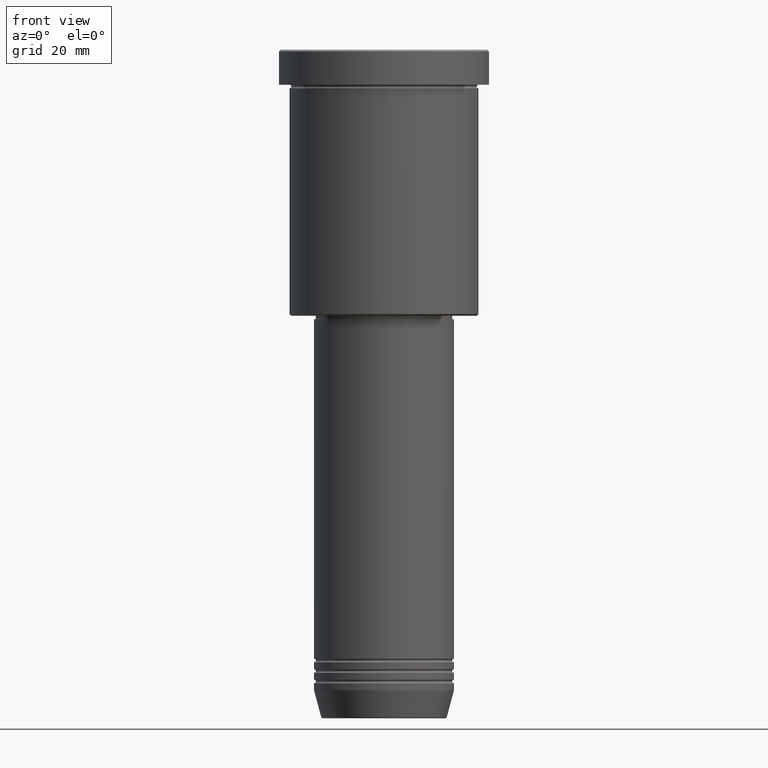
[diagram: clean part render]
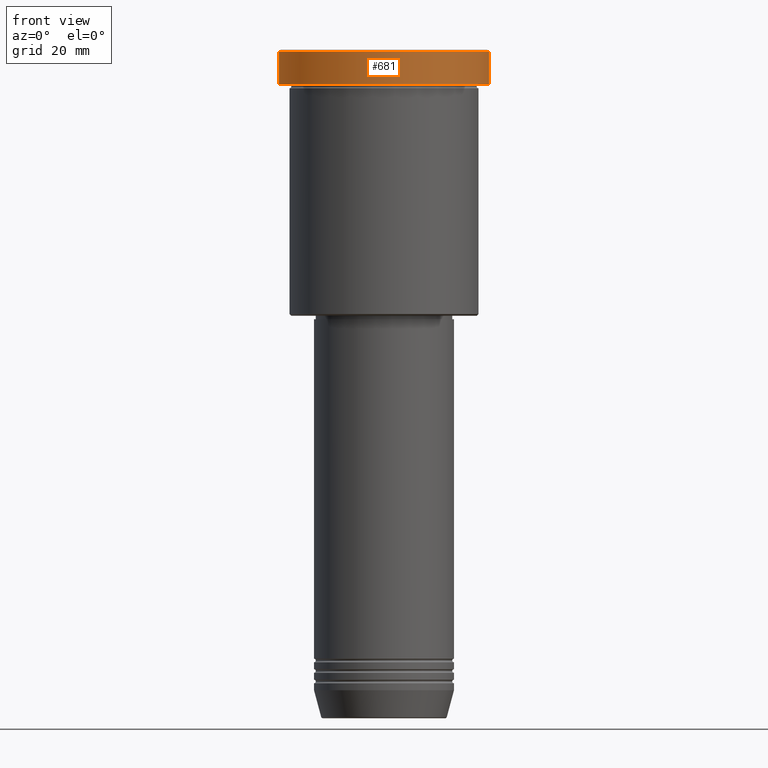
[diagram: same view with one face highlighted and labeled with its STEP entity id]
A machine part, front view. The second image highlights one B-rep face of the part: STEP entity #681.
In plain terms, the highlighted cylindrical surface (partial cylindrical patch) has radius 30 mm, axis along (-0, -0, 1).
Its self-contained STEP definition (entity closure, byte-faithful):
#50 = ORIENTED_EDGE ( 'NONE', *, *, #885, .F. ) ;
#56 = VERTEX_POINT ( 'NONE', #462 ) ;
#89 = CARTESIAN_POINT ( 'NONE',  ( -30.00000000000000000, 3.673940397442059178E-15, -9.999999999999992895 ) ) ;
#92 = DIRECTION ( 'NONE',  ( -0.000000000000000000, -0.000000000000000000, 1.000000000000000000 ) ) ;
#94 = EDGE_CURVE ( 'NONE', #56, #207, #931, .T. ) ;
#117 = DIRECTION ( 'NONE',  ( 1.000000000000000000, 0.000000000000000000, 0.000000000000000000 ) ) ;
#132 = ORIENTED_EDGE ( 'NONE', *, *, #1010, .T. ) ;
#156 = CYLINDRICAL_SURFACE ( 'NONE', #703, 30.00000000000000000 ) ;
#206 = VECTOR ( 'NONE', #92, 1000.000000000000000 ) ;
#207 = VERTEX_POINT ( 'NONE', #897 ) ;
#211 = ORIENTED_EDGE ( 'NONE', *, *, #94, .T. ) ;
#321 = DIRECTION ( 'NONE',  ( -0.000000000000000000, -0.000000000000000000, 1.000000000000000000 ) ) ;
#349 = VERTEX_POINT ( 'NONE', #690 ) ;
#377 = EDGE_LOOP ( 'NONE', ( #50, #511, #211, #132 ) ) ;
#391 = AXIS2_PLACEMENT_3D ( 'NONE', #547, #467, #117 ) ;
#405 = CIRCLE ( 'NONE', #391, 30.00000000000000000 ) ;
#435 = DIRECTION ( 'NONE',  ( 1.000000000000000000, 0.000000000000000000, 0.000000000000000000 ) ) ;
#462 = CARTESIAN_POINT ( 'NONE',  ( 30.00000000000000000, 0.000000000000000000, -9.999999999999992895 ) ) ;
#467 = DIRECTION ( 'NONE',  ( 0.000000000000000000, 0.000000000000000000, -1.000000000000000000 ) ) ;
#489 = VERTEX_POINT ( 'NONE', #89 ) ;
#494 = VECTOR ( 'NONE', #321, 1000.000000000000000 ) ;
#511 = ORIENTED_EDGE ( 'NONE', *, *, #880, .T. ) ;
#531 = CARTESIAN_POINT ( 'NONE',  ( -30.00000000000000000, 3.673940397442059178E-15, 0.000000000000000000 ) ) ;
#547 = CARTESIAN_POINT ( 'NONE',  ( 0.000000000000000000, 0.000000000000000000, -0.5000000000000628386 ) ) ;
#573 = CIRCLE ( 'NONE', #1146, 30.00000000000000000 ) ;
#600 = DIRECTION ( 'NONE',  ( -0.000000000000000000, -0.000000000000000000, 1.000000000000000000 ) ) ;
#609 = CARTESIAN_POINT ( 'NONE',  ( 0.000000000000000000, 0.000000000000000000, -9.999999999999992895 ) ) ;
#681 = ADVANCED_FACE ( 'NONE', ( #805 ), #156, .T. ) ;
#690 = CARTESIAN_POINT ( 'NONE',  ( -30.00000000000000000, 3.673940397442059178E-15, -0.5000000000000628386 ) ) ;
#703 = AXIS2_PLACEMENT_3D ( 'NONE', #1081, #600, #435 ) ;
#805 = FACE_OUTER_BOUND ( 'NONE', #377, .T. ) ;
#880 = EDGE_CURVE ( 'NONE', #489, #56, #573, .T. ) ;
#885 = EDGE_CURVE ( 'NONE', #489, #349, #915, .T. ) ;
#897 = CARTESIAN_POINT ( 'NONE',  ( 30.00000000000000000, 0.000000000000000000, -0.5000000000000628386 ) ) ;
#915 = LINE ( 'NONE', #531, #206 ) ;
#931 = LINE ( 'NONE', #959, #494 ) ;
#959 = CARTESIAN_POINT ( 'NONE',  ( 30.00000000000000000, 0.000000000000000000, 0.000000000000000000 ) ) ;
#1010 = EDGE_CURVE ( 'NONE', #207, #349, #405, .T. ) ;
#1081 = CARTESIAN_POINT ( 'NONE',  ( 0.000000000000000000, 0.000000000000000000, 0.000000000000000000 ) ) ;
#1082 = DIRECTION ( 'NONE',  ( 1.000000000000000000, 0.000000000000000000, 0.000000000000000000 ) ) ;
#1146 = AXIS2_PLACEMENT_3D ( 'NONE', #609, #1177, #1082 ) ;
#1177 = DIRECTION ( 'NONE',  ( -0.000000000000000000, -0.000000000000000000, 1.000000000000000000 ) ) ;